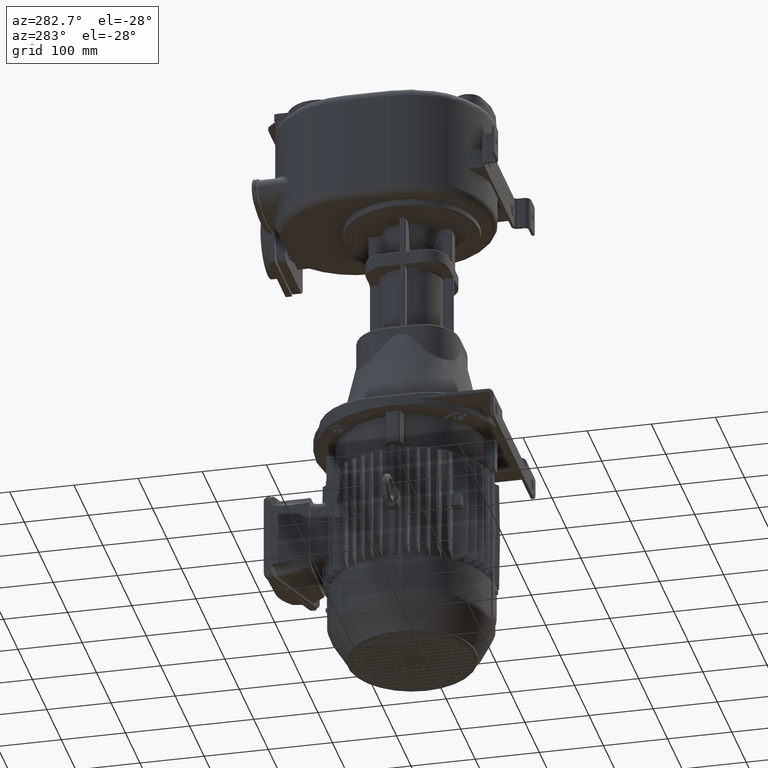
[diagram: clean part render]
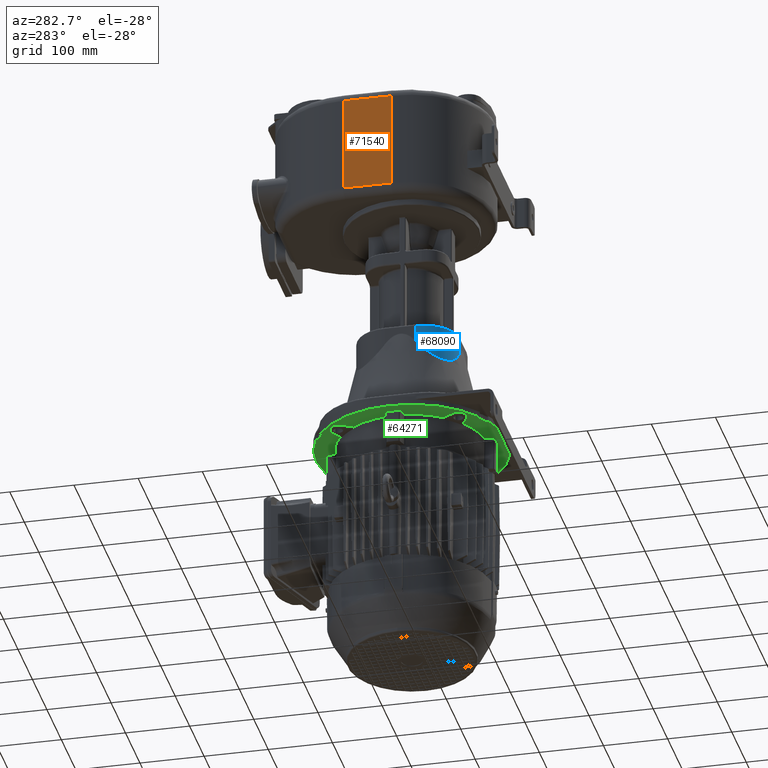
[diagram: same view with three faces highlighted in distinct colors, each labeled with its STEP entity id]
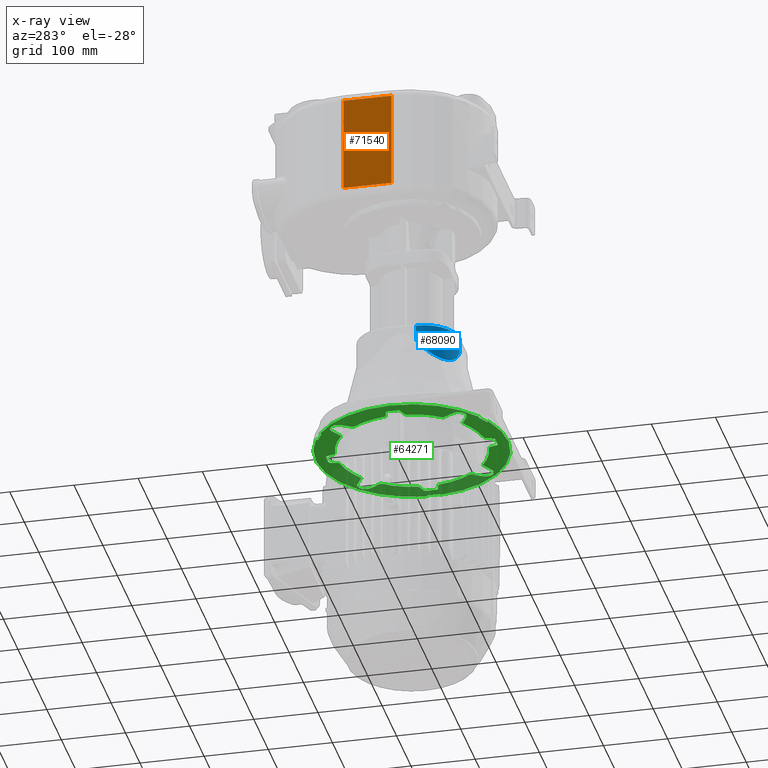
[diagram: x-ray of the same camera — body ghosted, the three highlighted faces saturated]
A machine part, auxiliary view with three faces highlighted in distinct colors.
The next image is the same camera in x-ray (body ghosted, the three faces saturated) — at least one of them is partly hidden behind the body in this view.
Their STEP definitions:

[orange] entity #71540 — the highlighted planar face has unit normal (-1, 0, 0).
#16171=DIRECTION('',(0.E0,3.031649005910E-14,1.E0));
#16172=VECTOR('',#16171,1.5E2);
#16173=CARTESIAN_POINT('',(-1.33E2,2.078750672767E2,-5.5E1));
#16174=LINE('',#16173,#16172);
#18139=DIRECTION('',(0.E0,1.E0,0.E0));
#18140=VECTOR('',#18139,7.487506727663E1);
#18141=CARTESIAN_POINT('',(-1.33E2,1.33E2,-5.5E1));
#18142=LINE('',#18141,#18140);
#18143=DIRECTION('',(0.E0,-1.E0,0.E0));
#18144=VECTOR('',#18143,7.487506727662E1);
#18145=CARTESIAN_POINT('',(-1.33E2,2.078750672767E2,9.5E1));
#18146=LINE('',#18145,#18144);
#18147=DIRECTION('',(0.E0,1.191817015448E-13,1.E0));
#18148=VECTOR('',#18147,1.5E2);
#18149=CARTESIAN_POINT('',(-1.33E2,1.33E2,-5.5E1));
#18150=LINE('',#18149,#18148);
#35637=CARTESIAN_POINT('',(-1.33E2,1.33E2,9.5E1));
#35638=VERTEX_POINT('',#35637);
#35643=CARTESIAN_POINT('',(-1.33E2,2.078750672767E2,9.5E1));
#35644=VERTEX_POINT('',#35643);
#35675=CARTESIAN_POINT('',(-1.33E2,1.33E2,-5.5E1));
#35676=VERTEX_POINT('',#35675);
#35679=CARTESIAN_POINT('',(-1.33E2,2.078750672767E2,-5.5E1));
#35680=VERTEX_POINT('',#35679);
#71528=CARTESIAN_POINT('',(-1.33E2,1.33E2,-7.E1));
#71529=DIRECTION('',(-1.E0,0.E0,0.E0));
#71530=DIRECTION('',(0.E0,1.E0,0.E0));
#71531=AXIS2_PLACEMENT_3D('',#71528,#71529,#71530);
#71532=PLANE('',#71531);
#71533=ORIENTED_EDGE('',*,*,#69312,.T.);
#71534=ORIENTED_EDGE('',*,*,#69345,.T.);
#71536=ORIENTED_EDGE('',*,*,#71535,.T.);
#71537=ORIENTED_EDGE('',*,*,#71511,.F.);
#71538=EDGE_LOOP('',(#71533,#71534,#71536,#71537));
#71539=FACE_OUTER_BOUND('',#71538,.F.);
#71540=ADVANCED_FACE('',(#71539),#71532,.T.);
#69312=EDGE_CURVE('',#35676,#35680,#18142,.T.);
#69345=EDGE_CURVE('',#35680,#35644,#16174,.T.);
#71511=EDGE_CURVE('',#35676,#35638,#18150,.T.);
#71535=EDGE_CURVE('',#35644,#35638,#18146,.T.);

[blue] entity #68090 — the highlighted cylindrical surface (partial cylindrical patch) has radius 56 mm, axis along (0, 0, 1).
#14515=CARTESIAN_POINT('',(-2.4E1,5.100000000022E1,-3.019786503790E2));
#14517=DIRECTION('',(0.E0,8.644929750280E-12,-1.E0));
#14518=VECTOR('',#14517,2.547865037899E1);
#14519=CARTESIAN_POINT('',(-2.4E1,5.1E1,-2.765E2));
#14520=LINE('',#14519,#14518);
#14540=CARTESIAN_POINT('',(-7.999999999978E1,1.07E2,-3.019786503790E2));
#14740=DIRECTION('',(8.447205462623E-12,0.E0,-1.E0));
#14741=VECTOR('',#14740,2.547865037900E1);
#14742=CARTESIAN_POINT('',(-8.E1,1.07E2,-2.765E2));
#14743=LINE('',#14742,#14741);
#14744=CARTESIAN_POINT('',(-2.4E1,1.07E2,-2.765E2));
#14745=DIRECTION('',(0.E0,0.E0,1.E0));
#14746=DIRECTION('',(-1.E0,0.E0,0.E0));
#14747=AXIS2_PLACEMENT_3D('',#14744,#14745,#14746);
#14749=CARTESIAN_POINT('',(-2.4E1,5.100000000022E1,-3.019786503790E2));
#14750=CARTESIAN_POINT('',(-2.643154655872E1,5.100000000870E1,
-3.050609790173E2));
#14751=CARTESIAN_POINT('',(-3.122876873437E1,5.131821845424E1,
-3.106632131171E2));
#14752=CARTESIAN_POINT('',(-3.805050641615E1,5.264889122497E1,
-3.173973264040E2));
#14753=CARTESIAN_POINT('',(-4.439745381722E1,5.471131779686E1,
-3.225726210665E2));
#14754=CARTESIAN_POINT('',(-5.015148383580E1,5.735610326234E1,
-3.262865884477E2));
#14755=CARTESIAN_POINT('',(-5.519854718414E1,6.037989127452E1,
-3.286853462530E2));
#14756=CARTESIAN_POINT('',(-5.965699922068E1,6.370449898679E1,
-3.300236311751E2));
#14757=CARTESIAN_POINT('',(-6.365883618E1,6.734114765858E1,-3.304537459220E2));
#14758=CARTESIAN_POINT('',(-6.729549174639E1,7.134298910860E1,
-3.300236340106E2));
#14759=CARTESIAN_POINT('',(-7.062010227431E1,7.580144312786E1,
-3.286853500798E2));
#14760=CARTESIAN_POINT('',(-7.364389211428E1,8.084850714764E1,
-3.262865936768E2));
#14761=CARTESIAN_POINT('',(-7.628867996519E1,8.660254016803E1,
-3.225726256052E2));
#14762=CARTESIAN_POINT('',(-7.835110768997E1,9.294948896515E1,
-3.173973307133E2));
#14763=CARTESIAN_POINT('',(-7.968178150694E1,9.977123007168E1,
-3.106632145645E2));
#14764=CARTESIAN_POINT('',(-8.000000000526E1,1.045684531064E2,
-3.050609794650E2));
#14765=CARTESIAN_POINT('',(-7.999999999978E1,1.07E2,-3.019786503790E2));
#36701=CARTESIAN_POINT('',(-2.4E1,5.1E1,-2.765E2));
#36702=VERTEX_POINT('',#36701);
#36705=CARTESIAN_POINT('',(-8.E1,1.07E2,-2.765E2));
#36706=VERTEX_POINT('',#36705);
#36755=VERTEX_POINT('',#14515);
#36757=VERTEX_POINT('',#14540);
#68079=CARTESIAN_POINT('',(-2.4E1,1.07E2,-2.745E2));
#68080=DIRECTION('',(0.E0,0.E0,1.E0));
#68081=DIRECTION('',(1.E0,0.E0,0.E0));
#68082=AXIS2_PLACEMENT_3D('',#68079,#68080,#68081);
#68083=CYLINDRICAL_SURFACE('',#68082,5.6E1);
#68084=ORIENTED_EDGE('',*,*,#66357,.F.);
#68085=ORIENTED_EDGE('',*,*,#68069,.T.);
#68086=ORIENTED_EDGE('',*,*,#65577,.T.);
#68087=ORIENTED_EDGE('',*,*,#66074,.T.);
#68088=EDGE_LOOP('',(#68084,#68085,#68086,#68087));
#68089=FACE_OUTER_BOUND('',#68088,.F.);
#68090=ADVANCED_FACE('',(#68089),#68083,.T.);
#14748=CIRCLE('',#14747,5.6E1);
#14766=B_SPLINE_CURVE_WITH_KNOTS('',3,(#14749,#14750,#14751,#14752,#14753,
#14754,#14755,#14756,#14757,#14758,#14759,#14760,#14761,#14762,#14763,#14764,
#14765),.UNSPECIFIED.,.F.,.F.,(4,1,1,1,1,1,1,1,1,1,1,1,1,1,4),(0.E0,
7.142857142857E-2,1.428571428571E-1,2.142857142857E-1,2.857142857143E-1,
3.571428571429E-1,4.285714285714E-1,5.E-1,5.714285714286E-1,6.428571428571E-1,
7.142857142857E-1,7.857142857143E-1,8.571428571429E-1,9.285714285714E-1,1.E0),
.UNSPECIFIED.);
#65577=EDGE_CURVE('',#36702,#36755,#14520,.T.);
#66074=EDGE_CURVE('',#36755,#36757,#14766,.T.);
#66357=EDGE_CURVE('',#36706,#36757,#14743,.T.);
#68069=EDGE_CURVE('',#36706,#36702,#14748,.T.);

[green] entity #64271 — the highlighted planar face has unit normal (0, 0, -1).
#12014=CARTESIAN_POINT('',(-6.985028300531E1,3.663941355335E1,-4.475E2));
#12024=CARTESIAN_POINT('',(-1.677839667950E1,1.480403531208E1,
-4.475000038922E2));
#12026=CARTESIAN_POINT('',(1.677839668540E1,1.480403527035E1,
-4.475000039765E2));
#13366=CARTESIAN_POINT('',(-2.068343506299E-12,1.31E2,-4.475E2));
#13367=DIRECTION('',(0.E0,0.E0,-1.E0));
#13368=DIRECTION('',(-4.411526246511E-1,8.974320931210E-1,0.E0));
#13369=AXIS2_PLACEMENT_3D('',#13366,#13367,#13368);
#13371=DIRECTION('',(-4.999999999962E-1,8.660254037867E-1,0.E0));
#13372=VECTOR('',#13371,2.666295470979E0);
#13373=CARTESIAN_POINT('',(-6.483974596215E1,2.633057343562E2,-4.475E2));
#13374=LINE('',#13373,#13372);
#13375=DIRECTION('',(8.660254037844E-1,5.E-1,0.E0));
#13376=VECTOR('',#13375,2.E1);
#13377=CARTESIAN_POINT('',(-8.216025403784E1,2.533057343562E2,-4.475E2));
#13378=LINE('',#13377,#13376);
#13379=DIRECTION('',(4.999999999962E-1,-8.660254037867E-1,0.E0));
#13380=VECTOR('',#13379,2.666295470980E0);
#13381=CARTESIAN_POINT('',(-8.349340177332E1,2.556148139681E2,-4.475E2));
#13382=LINE('',#13381,#13380);
#13383=DIRECTION('',(-5.000000000042E-1,-8.660254037820E-1,0.E0));
#13384=VECTOR('',#13383,2.666295470937E0);
#13385=CARTESIAN_POINT('',(-8.216025403784E1,8.694265643614E0,-4.475E2));
#13386=LINE('',#13385,#13384);
#13387=DIRECTION('',(-8.660254037844E-1,5.E-1,0.E0));
#13388=VECTOR('',#13387,2.E1);
#13389=CARTESIAN_POINT('',(-6.483974596215E1,-1.305734356386E0,-4.475E2));
#13390=LINE('',#13389,#13388);
#13391=DIRECTION('',(5.000000000042E-1,8.660254037820E-1,0.E0));
#13392=VECTOR('',#13391,2.666295470937E0);
#13393=CARTESIAN_POINT('',(-6.617289369763E1,-3.614813968205E0,-4.475E2));
#13394=LINE('',#13393,#13392);
#13395=CARTESIAN_POINT('',(-2.068343506299E-12,1.31E2,-4.475E2));
#13396=DIRECTION('',(0.E0,0.E0,-1.E0));
#13397=DIRECTION('',(9.977753031397E-1,-6.666666666716E-2,0.E0));
#13398=AXIS2_PLACEMENT_3D('',#13395,#13396,#13397);
#13400=CARTESIAN_POINT('',(0.E0,1.309999999999E2,-4.475E2));
#13401=DIRECTION('',(0.E0,0.E0,1.E0));
#13402=DIRECTION('',(5.949720586321E-1,8.037463837848E-1,0.E0));
#13403=AXIS2_PLACEMENT_3D('',#13400,#13401,#13402);
#13405=DIRECTION('',(-8.660254037844E-1,-5.E-1,8.954910478748E-14));
#13406=VECTOR('',#13405,2.031275921588E1);
#13407=CARTESIAN_POINT('',(8.744164850722E1,2.355169660545E2,-4.475E2));
#13408=LINE('',#13407,#13406);
#13409=CARTESIAN_POINT('',(9.369164850722E1,2.246916485071E2,-4.475E2));
#13410=DIRECTION('',(0.E0,0.E0,1.E0));
#13411=DIRECTION('',(8.660254037844E-1,-5.E-1,0.E0));
#13412=AXIS2_PLACEMENT_3D('',#13409,#13410,#13411);
#13414=DIRECTION('',(5.E-1,8.660254037844E-1,-8.954910478748E-14));
#13415=VECTOR('',#13414,2.031275921588E1);
#13416=CARTESIAN_POINT('',(9.436058644658E1,2.008502830052E2,-4.475E2));
#13417=LINE('',#13416,#13415);
#13418=CARTESIAN_POINT('',(0.E0,1.309999999999E2,-4.475E2));
#13419=DIRECTION('',(0.E0,0.E0,1.E0));
#13420=DIRECTION('',(9.897349420994E-1,1.429151650017E-1,0.E0));
#13421=AXIS2_PLACEMENT_3D('',#13418,#13419,#13420);
#13423=DIRECTION('',(-9.659224545839E-1,2.588316281497E-1,-2.176542213968E-7));
#13424=VECTOR('',#13423,1.168559143071E1);
#13425=CARTESIAN_POINT('',(1.296757316355E2,1.422854835056E2,-4.475E2));
#13426=LINE('',#13425,#13424);
#13427=DIRECTION('',(0.E0,1.E0,0.E0));
#13428=VECTOR('',#13427,1.677629474465E1);
#13429=CARTESIAN_POINT('',(1.318989358438E2,1.226118526276E2,-4.475E2));
#13430=LINE('',#13429,#13428);
#13431=DIRECTION('',(9.659224560049E-1,2.588316228464E-1,2.178457231904E-7));
#13432=VECTOR('',#13431,1.168559143069E1);
#13433=CARTESIAN_POINT('',(1.183883564609E2,1.166899159004E2,
-4.475000025457E2));
#13434=LINE('',#13433,#13432);
#13435=CARTESIAN_POINT('',(0.E0,1.309999999999E2,-4.475E2));
#13436=DIRECTION('',(0.E0,0.E0,1.E0));
#13437=DIRECTION('',(8.037463837847E-1,-5.949720586321E-1,0.E0));
#13438=AXIS2_PLACEMENT_3D('',#13435,#13436,#13437);
#13440=DIRECTION('',(-5.E-1,8.660254037844E-1,8.954910478748E-14));
#13441=VECTOR('',#13440,2.031275921588E1);
#13442=CARTESIAN_POINT('',(1.045169660545E2,4.355835149271E1,-4.475E2));
#13443=LINE('',#13442,#13441);
#13444=DIRECTION('',(8.660254037844E-1,-5.E-1,-8.954910478748E-14));
#13445=VECTOR('',#13444,2.031275921588E1);
#13446=CARTESIAN_POINT('',(6.985028300531E1,3.663941355335E1,-4.475E2));
#13447=LINE('',#13446,#13445);
#13448=CARTESIAN_POINT('',(0.E0,1.309999999999E2,-4.475E2));
#13449=DIRECTION('',(0.E0,0.E0,1.E0));
#13450=DIRECTION('',(1.429151650018E-1,-9.897349420994E-1,0.E0));
#13451=AXIS2_PLACEMENT_3D('',#13448,#13449,#13450);
#13453=DIRECTION('',(2.588316262081E-1,9.659224551041E-1,-2.177243320286E-7));
#13454=VECTOR('',#13453,1.168559143070E1);
#13455=CARTESIAN_POINT('',(1.128548350565E1,1.324268364469E0,-4.475E2));
#13456=LINE('',#13455,#13454);
#13457=DIRECTION('',(1.E0,0.E0,0.E0));
#13458=VECTOR('',#13457,1.677629474465E1);
#13459=CARTESIAN_POINT('',(-8.388147372326E0,-8.989358438756E-1,-4.475E2));
#13460=LINE('',#13459,#13458);
#13461=DIRECTION('',(2.588316291898E-1,-9.659224543052E-1,2.176166779391E-7));
#13462=VECTOR('',#13461,1.168559143072E1);
#13463=CARTESIAN_POINT('',(-1.431008417371E1,1.261164351923E1,
-4.475000025430E2));
#13464=LINE('',#13463,#13462);
#13465=CARTESIAN_POINT('',(0.E0,1.309999999999E2,-4.475E2));
#13466=DIRECTION('',(0.E0,0.E0,1.E0));
#13467=DIRECTION('',(-5.949720586321E-1,-8.037463837847E-1,0.E0));
#13468=AXIS2_PLACEMENT_3D('',#13465,#13466,#13467);
#13470=DIRECTION('',(8.660254037844E-1,5.E-1,8.954910478747E-14));
#13471=VECTOR('',#13470,2.031275921588E1);
#13472=CARTESIAN_POINT('',(-8.744164850722E1,2.648303394540E1,-4.475E2));
#13473=LINE('',#13472,#13471);
#13474=DIRECTION('',(-5.E-1,-8.660254037844E-1,-8.954910478748E-14));
#13475=VECTOR('',#13474,2.031275921588E1);
#13476=CARTESIAN_POINT('',(-9.436058644658E1,6.114971699462E1,-4.475E2));
#13477=LINE('',#13476,#13475);
#13478=CARTESIAN_POINT('',(0.E0,1.309999999999E2,-4.475E2));
#13479=DIRECTION('',(0.E0,0.E0,1.E0));
#13480=DIRECTION('',(-9.897349420994E-1,-1.429151650018E-1,0.E0));
#13481=AXIS2_PLACEMENT_3D('',#13478,#13479,#13480);
#13483=DIRECTION('',(9.659224551041E-1,-2.588316262082E-1,-2.177243271642E-7));
#13484=VECTOR('',#13483,1.168559143070E1);
#13485=CARTESIAN_POINT('',(-1.296757316355E2,1.197145164943E2,-4.475E2));
#13486=LINE('',#13485,#13484);
#13487=DIRECTION('',(0.E0,-1.E0,0.E0));
#13488=VECTOR('',#13487,1.677629474465E1);
#13489=CARTESIAN_POINT('',(-1.318989358438E2,1.393881473723E2,-4.475E2));
#13490=LINE('',#13489,#13488);
#13491=DIRECTION('',(-9.659224535630E-1,-2.588316319593E-1,2.175166658258E-7));
#13492=VECTOR('',#13491,1.168559143073E1);
#13493=CARTESIAN_POINT('',(-1.183883564894E2,1.453100842060E2,
-4.475000025418E2));
#13494=LINE('',#13493,#13492);
#13495=CARTESIAN_POINT('',(0.E0,1.309999999999E2,-4.475E2));
#13496=DIRECTION('',(0.E0,0.E0,1.E0));
#13497=DIRECTION('',(-8.037463837847E-1,5.949720586321E-1,0.E0));
#13498=AXIS2_PLACEMENT_3D('',#13495,#13496,#13497);
#13500=DIRECTION('',(5.E-1,-8.660254037844E-1,8.954910478748E-14));
#13501=VECTOR('',#13500,2.031275921588E1);
#13502=CARTESIAN_POINT('',(-1.045169660545E2,2.184416485071E2,-4.475E2));
#13503=LINE('',#13502,#13501);
#13504=CARTESIAN_POINT('',(-9.369164850722E1,2.246916485071E2,-4.475E2));
#13505=DIRECTION('',(0.E0,0.E0,1.E0));
#13506=DIRECTION('',(0.E0,1.E0,0.E0));
#13507=AXIS2_PLACEMENT_3D('',#13504,#13505,#13506);
#13509=CARTESIAN_POINT('',(-9.369164850722E1,2.246916485071E2,-4.475E2));
#13510=DIRECTION('',(0.E0,0.E0,1.E0));
#13511=DIRECTION('',(5.E-1,8.660254037845E-1,0.E0));
#13512=AXIS2_PLACEMENT_3D('',#13509,#13510,#13511);
#13514=DIRECTION('',(-8.660254037844E-1,5.E-1,-8.954910478748E-14));
#13515=VECTOR('',#13514,2.031275921588E1);
#13516=CARTESIAN_POINT('',(-6.985028300531E1,2.253605864465E2,-4.475E2));
#13517=LINE('',#13516,#13515);
#13518=CARTESIAN_POINT('',(0.E0,1.309999999999E2,-4.475E2));
#13519=DIRECTION('',(0.E0,0.E0,1.E0));
#13520=DIRECTION('',(-1.429151650017E-1,9.897349420994E-1,0.E0));
#13521=AXIS2_PLACEMENT_3D('',#13518,#13519,#13520);
#13523=DIRECTION('',(-2.588316309142E-1,-9.659224538431E-1,-2.175543941308E-7));
#13524=VECTOR('',#13523,1.168559143072E1);
#13525=CARTESIAN_POINT('',(-1.128548350565E1,2.606757316354E2,-4.475E2));
#13526=LINE('',#13525,#13524);
#13527=DIRECTION('',(-1.E0,0.E0,0.E0));
#13528=VECTOR('',#13527,1.677629474465E1);
#13529=CARTESIAN_POINT('',(8.388147372326E0,2.628989358437E2,-4.475E2));
#13530=LINE('',#13529,#13528);
#13531=DIRECTION('',(-2.588316243166E-1,9.659224556110E-1,2.177926428314E-7));
#13532=VECTOR('',#13531,1.168559143070E1);
#13533=CARTESIAN_POINT('',(1.431008411676E1,2.493883564654E2,
-4.475000025450E2));
#13534=LINE('',#13533,#13532);
#13535=DIRECTION('',(1.E0,9.316512109312E-12,0.E0));
#13536=VECTOR('',#13535,2.666295470957E0);
#13537=CARTESIAN_POINT('',(1.47E2,1.409999999999E2,-4.475E2));
#13538=LINE('',#13537,#13536);
#13560=DIRECTION('',(-1.E0,-9.305852484473E-12,0.E0));
#13561=VECTOR('',#13560,2.666295470957E0);
#13562=CARTESIAN_POINT('',(1.496662954710E2,1.21E2,-4.475E2));
#13563=LINE('',#13562,#13561);
#13564=DIRECTION('',(0.E0,1.E0,0.E0));
#13565=VECTOR('',#13564,2.E1);
#13566=CARTESIAN_POINT('',(1.47E2,1.209999999999E2,-4.475E2));
#13567=LINE('',#13566,#13565);
#13592=CARTESIAN_POINT('',(-2.068343506299E-12,1.31E2,-4.475E2));
#13593=DIRECTION('',(0.E0,0.E0,-1.E0));
#13594=DIRECTION('',(-5.566226784886E-1,-8.307654264545E-1,0.E0));
#13595=AXIS2_PLACEMENT_3D('',#13592,#13593,#13594);
#23665=CARTESIAN_POINT('',(1.161959646731E2,1.477783966772E2,
-4.475000039795E2));
#23666=CARTESIAN_POINT('',(1.162387447735E2,1.474821313892E2,
-4.475000039795E2));
#23667=CARTESIAN_POINT('',(1.164056863860E2,1.469293674599E2,
-4.474999980615E2));
#23668=CARTESIAN_POINT('',(1.168892248477E2,1.461866716082E2,
-4.475000008154E2));
#23669=CARTESIAN_POINT('',(1.175697225523E2,1.456187322292E2,
-4.474999986770E2));
#23670=CARTESIAN_POINT('',(1.180990892467E2,1.453875926279E2,
-4.475000025434E2));
#23671=CARTESIAN_POINT('',(1.183883564774E2,1.453100841615E2,
-4.475000025434E2));
#23711=CARTESIAN_POINT('',(1.296757316355E2,1.422854835056E2,-4.475E2));
#23712=CARTESIAN_POINT('',(1.304167997049E2,1.420869149148E2,-4.475E2));
#23713=CARTESIAN_POINT('',(1.314003619669E2,1.413072085421E2,-4.475E2));
#23714=CARTESIAN_POINT('',(1.318989358438E2,1.401553574926E2,-4.475E2));
#23715=CARTESIAN_POINT('',(1.318989358438E2,1.393881473723E2,-4.475E2));
#23731=CARTESIAN_POINT('',(1.318989358438E2,1.226118526276E2,-4.475E2));
#23732=CARTESIAN_POINT('',(1.318989358438E2,1.218446425072E2,-4.475E2));
#23733=CARTESIAN_POINT('',(1.314003619669E2,1.206927914578E2,-4.475E2));
#23734=CARTESIAN_POINT('',(1.304167997049E2,1.199130850850E2,-4.475E2));
#23735=CARTESIAN_POINT('',(1.296757316355E2,1.197145164943E2,-4.475E2));
#23759=CARTESIAN_POINT('',(1.183883564609E2,1.166899159004E2,
-4.475000025457E2));
#23760=CARTESIAN_POINT('',(1.180990893731E2,1.166124074723E2,
-4.475000025457E2));
#23761=CARTESIAN_POINT('',(1.175697228705E2,1.163812679791E2,
-4.474999986791E2));
#23762=CARTESIAN_POINT('',(1.168892247092E2,1.158133282309E2,
-4.475000008047E2));
#23763=CARTESIAN_POINT('',(1.164056865448E2,1.150706328880E2,
-4.474999981020E2));
#23764=CARTESIAN_POINT('',(1.162387448855E2,1.145178687459E2,
-4.475000038922E2));
#23765=CARTESIAN_POINT('',(1.161959647635E2,1.142216033095E2,
-4.475000038922E2));
#23790=CARTESIAN_POINT('',(9.369164850722E1,3.730835149271E1,-4.475E2));
#23791=DIRECTION('',(0.E0,0.E0,1.E0));
#23792=DIRECTION('',(-5.000000000001E-1,-8.660254037844E-1,0.E0));
#23793=AXIS2_PLACEMENT_3D('',#23790,#23791,#23792);
#23826=CARTESIAN_POINT('',(1.677839668540E1,1.480403527035E1,
-4.475000039765E2));
#23827=CARTESIAN_POINT('',(1.648213139614E1,1.476125516977E1,
-4.475000039765E2));
#23828=CARTESIAN_POINT('',(1.592936745249E1,1.459431363796E1,
-4.474999980629E2));
#23829=CARTESIAN_POINT('',(1.518667160456E1,1.411077514405E1,
-4.475000008151E2));
#23830=CARTESIAN_POINT('',(1.461873223799E1,1.343027744423E1,
-4.474999986767E2));
#23831=CARTESIAN_POINT('',(1.438759260501E1,1.290091075849E1,
-4.475000025442E2));
#23832=CARTESIAN_POINT('',(1.431008413886E1,1.261164352856E1,
-4.475000025442E2));
#23867=CARTESIAN_POINT('',(1.128548350565E1,1.324268364469E0,-4.475E2));
#23868=CARTESIAN_POINT('',(1.108691491490E1,5.832002950208E-1,-4.475E2));
#23869=CARTESIAN_POINT('',(1.030720854214E1,-4.003619669406E-1,-4.475E2));
#23870=CARTESIAN_POINT('',(9.155357492688E0,-8.989358438753E-1,-4.475E2));
#23871=CARTESIAN_POINT('',(8.388147372326E0,-8.989358438756E-1,-4.475E2));
#23887=CARTESIAN_POINT('',(-8.388147372326E0,-8.989358438756E-1,-4.475E2));
#23888=CARTESIAN_POINT('',(-9.155357492688E0,-8.989358438756E-1,-4.475E2));
#23889=CARTESIAN_POINT('',(-1.030720854214E1,-4.003619669406E-1,-4.475E2));
#23890=CARTESIAN_POINT('',(-1.108691491490E1,5.832002950215E-1,-4.475E2));
#23891=CARTESIAN_POINT('',(-1.128548350565E1,1.324268364470E0,-4.475E2));
#23915=CARTESIAN_POINT('',(-1.431008417371E1,1.261164351923E1,
-4.475000025430E2));
#23916=CARTESIAN_POINT('',(-1.438759260230E1,1.290091060899E1,
-4.475000025430E2));
#23917=CARTESIAN_POINT('',(-1.461873199058E1,1.343027714241E1,
-4.474999986803E2));
#23918=CARTESIAN_POINT('',(-1.518667178063E1,1.411077530096E1,
-4.475000008044E2));
#23919=CARTESIAN_POINT('',(-1.592936712119E1,1.459431342374E1,
-4.474999981021E2));
#23920=CARTESIAN_POINT('',(-1.648213124515E1,1.476125519039E1,
-4.475000038922E2));
#23921=CARTESIAN_POINT('',(-1.677839667950E1,1.480403531208E1,
-4.475000038922E2));
#23946=CARTESIAN_POINT('',(-9.369164850722E1,3.730835149271E1,-4.475E2));
#23947=DIRECTION('',(0.E0,0.E0,1.E0));
#23948=DIRECTION('',(-8.660254037844E-1,5.000000000001E-1,0.E0));
#23949=AXIS2_PLACEMENT_3D('',#23946,#23947,#23948);
#23982=CARTESIAN_POINT('',(-1.161959647296E2,1.142216033145E2,
-4.475000039765E2));
#23983=CARTESIAN_POINT('',(-1.162387448301E2,1.145178686038E2,
-4.475000039765E2));
#23984=CARTESIAN_POINT('',(-1.164056863620E2,1.150706325474E2,
-4.474999980629E2));
#23985=CARTESIAN_POINT('',(-1.168892248559E2,1.158133283954E2,
-4.475000008151E2));
#23986=CARTESIAN_POINT('',(-1.175697225557E2,1.163812677619E2,
-4.474999986767E2));
#23987=CARTESIAN_POINT('',(-1.180990892414E2,1.166124073949E2,
-4.475000025442E2));
#23988=CARTESIAN_POINT('',(-1.183883564714E2,1.166899158611E2,
-4.475000025442E2));
#24006=CARTESIAN_POINT('',(-1.296757316355E2,1.197145164943E2,-4.475E2));
#24007=CARTESIAN_POINT('',(-1.304167997049E2,1.199130850850E2,-4.475E2));
#24008=CARTESIAN_POINT('',(-1.314003619669E2,1.206927914578E2,-4.475E2));
#24009=CARTESIAN_POINT('',(-1.318989358438E2,1.218446425072E2,-4.475E2));
#24010=CARTESIAN_POINT('',(-1.318989358438E2,1.226118526276E2,-4.475E2));
#24018=CARTESIAN_POINT('',(-1.318989358438E2,1.393881473723E2,-4.475E2));
#24019=CARTESIAN_POINT('',(-1.318989358438E2,1.401553574926E2,-4.475E2));
#24020=CARTESIAN_POINT('',(-1.314003619669E2,1.413072085421E2,-4.475E2));
#24021=CARTESIAN_POINT('',(-1.304167997049E2,1.420869149148E2,-4.475E2));
#24022=CARTESIAN_POINT('',(-1.296757316355E2,1.422854835056E2,-4.475E2));
#24046=CARTESIAN_POINT('',(-1.183883564894E2,1.453100842060E2,
-4.475000025418E2));
#24047=CARTESIAN_POINT('',(-1.180990893992E2,1.453875926347E2,
-4.475000025418E2));
#24048=CARTESIAN_POINT('',(-1.175697228507E2,1.456187319763E2,
-4.474999986809E2));
#24049=CARTESIAN_POINT('',(-1.168892247044E2,1.461866717854E2,
-4.475000008043E2));
#24050=CARTESIAN_POINT('',(-1.164056865613E2,1.469293671160E2,
-4.474999981021E2));
#24051=CARTESIAN_POINT('',(-1.162387448427E2,1.474821312494E2,
-4.475000038922E2));
#24052=CARTESIAN_POINT('',(-1.161959647210E2,1.477783966842E2,
-4.475000038922E2));
#24113=CARTESIAN_POINT('',(-1.677839668202E1,2.471959647061E2,
-4.475000039778E2));
#24114=CARTESIAN_POINT('',(-1.648213139362E1,2.472387448066E2,
-4.475000039778E2));
#24115=CARTESIAN_POINT('',(-1.592936745482E1,2.474056863710E2,
-4.474999980624E2));
#24116=CARTESIAN_POINT('',(-1.518667161305E1,2.478892248531E2,
-4.475000008150E2));
#24117=CARTESIAN_POINT('',(-1.461873221507E1,2.485697225454E2,
-4.474999986776E2));
#24118=CARTESIAN_POINT('',(-1.438759266035E1,2.490990892548E2,
-4.475000025423E2));
#24119=CARTESIAN_POINT('',(-1.431008419386E1,2.493883564860E2,
-4.475000025423E2));
#24154=CARTESIAN_POINT('',(-1.128548350565E1,2.606757316354E2,-4.475E2));
#24155=CARTESIAN_POINT('',(-1.108691491490E1,2.614167997048E2,-4.475E2));
#24156=CARTESIAN_POINT('',(-1.030720854214E1,2.624003619668E2,-4.475E2));
#24157=CARTESIAN_POINT('',(-9.155357492689E0,2.628989358437E2,-4.475E2));
#24158=CARTESIAN_POINT('',(-8.388147372327E0,2.628989358437E2,-4.475E2));
#24174=CARTESIAN_POINT('',(8.388147372325E0,2.628989358437E2,-4.475E2));
#24175=CARTESIAN_POINT('',(9.155357492687E0,2.628989358437E2,-4.475E2));
#24176=CARTESIAN_POINT('',(1.030720854214E1,2.624003619668E2,-4.475E2));
#24177=CARTESIAN_POINT('',(1.108691491490E1,2.614167997048E2,-4.475E2));
#24178=CARTESIAN_POINT('',(1.128548350565E1,2.606757316354E2,-4.475E2));
#24202=CARTESIAN_POINT('',(1.431008411676E1,2.493883564654E2,
-4.475000025450E2));
#24203=CARTESIAN_POINT('',(1.438759254487E1,2.490990893774E2,
-4.475000025450E2));
#24204=CARTESIAN_POINT('',(1.461873201329E1,2.485697228668E2,
-4.474999986794E2));
#24205=CARTESIAN_POINT('',(1.518667177158E1,2.478892247118E2,
-4.475000008047E2));
#24206=CARTESIAN_POINT('',(1.592936710945E1,2.474056865377E2,
-4.474999981020E2));
#24207=CARTESIAN_POINT('',(1.648213125610E1,2.472387449010E2,
-4.475000038922E2));
#24208=CARTESIAN_POINT('',(1.677839669268E1,2.471959647790E2,
-4.475000038922E2));
#43102=CARTESIAN_POINT('',(1.045169660545E2,4.355835149271E1,-4.475E2));
#43104=VERTEX_POINT('',#43102);
#43105=CARTESIAN_POINT('',(8.744164850722E1,2.648303394540E1,-4.475E2));
#43107=VERTEX_POINT('',#43105);
#43109=CARTESIAN_POINT('',(-1.045169660545E2,4.355835149271E1,-4.475E2));
#43111=VERTEX_POINT('',#43109);
#43117=VERTEX_POINT('',#12026);
#43119=CARTESIAN_POINT('',(6.985028300531E1,3.663941355335E1,-4.475E2));
#43120=VERTEX_POINT('',#43119);
#43121=CARTESIAN_POINT('',(-1.161958192874E2,1.142216243161E2,-4.475E2));
#43122=CARTESIAN_POINT('',(-9.436058644658E1,6.114971699462E1,-4.475E2));
#43123=VERTEX_POINT('',#43121);
#43124=VERTEX_POINT('',#43122);
#43127=VERTEX_POINT('',#12014);
#43130=CARTESIAN_POINT('',(-1.128548350565E1,2.606757316354E2,-4.475E2));
#43132=VERTEX_POINT('',#43130);
#43135=CARTESIAN_POINT('',(-1.296757316355E2,1.422854835056E2,-4.475E2));
#43137=VERTEX_POINT('',#43135);
#43143=CARTESIAN_POINT('',(1.128548350565E1,2.606757316354E2,-4.475E2));
#43145=VERTEX_POINT('',#43143);
#43149=CARTESIAN_POINT('',(8.388147372326E0,2.628989358437E2,-4.475E2));
#43150=VERTEX_POINT('',#43149);
#43151=CARTESIAN_POINT('',(-1.431008419386E1,2.493883564860E2,
-4.475000025423E2));
#43152=VERTEX_POINT('',#43151);
#43153=CARTESIAN_POINT('',(-8.388147372326E0,2.628989358437E2,-4.475E2));
#43154=VERTEX_POINT('',#43153);
#43155=CARTESIAN_POINT('',(1.431008411676E1,2.493883564654E2,
-4.475000025450E2));
#43157=VERTEX_POINT('',#43155);
#43164=CARTESIAN_POINT('',(1.431008413886E1,1.261164352856E1,
-4.475000025442E2));
#43166=VERTEX_POINT('',#43164);
#43167=CARTESIAN_POINT('',(8.388147372326E0,-8.989358438756E-1,-4.475E2));
#43168=VERTEX_POINT('',#43167);
#43169=CARTESIAN_POINT('',(-1.431008417371E1,1.261164351923E1,
-4.475000025430E2));
#43171=VERTEX_POINT('',#43169);
#43175=CARTESIAN_POINT('',(8.744164850722E1,2.355169660545E2,-4.475E2));
#43176=VERTEX_POINT('',#43175);
#43178=CARTESIAN_POINT('',(-8.388147372326E0,-8.989358438756E-1,-4.475E2));
#43179=VERTEX_POINT('',#43178);
#43180=CARTESIAN_POINT('',(1.128548350565E1,1.324268364469E0,-4.475E2));
#43181=VERTEX_POINT('',#43180);
#43184=CARTESIAN_POINT('',(-1.318989358438E2,1.226118526276E2,-4.475E2));
#43186=VERTEX_POINT('',#43184);
#43193=CARTESIAN_POINT('',(-1.183883564714E2,1.166899158611E2,
-4.475000025442E2));
#43194=VERTEX_POINT('',#43193);
#43196=CARTESIAN_POINT('',(-1.183883564894E2,1.453100842060E2,
-4.475000025418E2));
#43197=VERTEX_POINT('',#43196);
#43198=CARTESIAN_POINT('',(1.183883564609E2,1.166899159004E2,
-4.475000025457E2));
#43200=VERTEX_POINT('',#43198);
#43203=CARTESIAN_POINT('',(1.296757316355E2,1.197145164943E2,-4.475E2));
#43205=VERTEX_POINT('',#43203);
#43207=CARTESIAN_POINT('',(1.318989358438E2,1.393881473723E2,-4.475E2));
#43209=VERTEX_POINT('',#43207);
#43213=CARTESIAN_POINT('',(1.183883564774E2,1.453100841615E2,
-4.475000025434E2));
#43215=VERTEX_POINT('',#43213);
#43216=CARTESIAN_POINT('',(-1.318989358438E2,1.393881473723E2,-4.475E2));
#43217=VERTEX_POINT('',#43216);
#43218=CARTESIAN_POINT('',(1.318989358438E2,1.226118526276E2,-4.475E2));
#43220=VERTEX_POINT('',#43218);
#43222=CARTESIAN_POINT('',(-1.296757316355E2,1.197145164943E2,-4.475E2));
#43223=VERTEX_POINT('',#43222);
#43225=CARTESIAN_POINT('',(-1.045169660545E2,2.184416485071E2,-4.475E2));
#43227=VERTEX_POINT('',#43225);
#43230=CARTESIAN_POINT('',(1.045169660545E2,2.184416485071E2,-4.475E2));
#43232=VERTEX_POINT('',#43230);
#43234=CARTESIAN_POINT('',(-1.128548350565E1,1.324268364469E0,-4.475E2));
#43235=VERTEX_POINT('',#43234);
#43242=CARTESIAN_POINT('',(-8.744164850722E1,2.355169660545E2,-4.475E2));
#43243=VERTEX_POINT('',#43242);
#43246=CARTESIAN_POINT('',(-8.744164850722E1,2.648303394540E1,-4.475E2));
#43247=VERTEX_POINT('',#43246);
#43252=CARTESIAN_POINT('',(9.436058644658E1,6.114971699462E1,-4.475E2));
#43253=CARTESIAN_POINT('',(1.161958192874E2,1.142216243161E2,-4.475E2));
#43254=VERTEX_POINT('',#43252);
#43255=VERTEX_POINT('',#43253);
#43257=VERTEX_POINT('',#12024);
#43262=CARTESIAN_POINT('',(-6.617289369763E1,-3.614813968205E0,-4.475E2));
#43263=CARTESIAN_POINT('',(-6.483974596215E1,-1.305734356386E0,-4.475E2));
#43264=VERTEX_POINT('',#43262);
#43265=VERTEX_POINT('',#43263);
#43266=CARTESIAN_POINT('',(1.496662954710E2,1.209999999999E2,-4.475E2));
#43267=VERTEX_POINT('',#43266);
#43268=CARTESIAN_POINT('',(-8.216025403784E1,8.694265643614E0,-4.475E2));
#43269=VERTEX_POINT('',#43268);
#43270=CARTESIAN_POINT('',(-8.349340177332E1,6.385186031794E0,-4.475E2));
#43271=VERTEX_POINT('',#43270);
#43272=CARTESIAN_POINT('',(1.47E2,1.209999999999E2,-4.475E2));
#43273=CARTESIAN_POINT('',(1.47E2,1.409999999999E2,-4.475E2));
#43274=VERTEX_POINT('',#43272);
#43275=VERTEX_POINT('',#43273);
#43276=CARTESIAN_POINT('',(1.496662954710E2,1.41E2,-4.475E2));
#43277=VERTEX_POINT('',#43276);
#43278=CARTESIAN_POINT('',(-6.617289369766E1,2.656148139681E2,-4.475E2));
#43279=VERTEX_POINT('',#43278);
#43280=CARTESIAN_POINT('',(6.985028300531E1,2.253605864465E2,-4.475E2));
#43281=CARTESIAN_POINT('',(1.677837568386E1,2.471958192874E2,-4.475E2));
#43282=VERTEX_POINT('',#43280);
#43283=VERTEX_POINT('',#43281);
#43284=CARTESIAN_POINT('',(-8.216025403784E1,2.533057343562E2,-4.475E2));
#43285=CARTESIAN_POINT('',(-6.483974596215E1,2.633057343562E2,-4.475E2));
#43286=VERTEX_POINT('',#43284);
#43287=VERTEX_POINT('',#43285);
#43288=CARTESIAN_POINT('',(-8.349340177332E1,2.556148139681E2,-4.475E2));
#43289=VERTEX_POINT('',#43288);
#43290=CARTESIAN_POINT('',(-1.677837568385E1,2.471958192874E2,-4.475E2));
#43291=CARTESIAN_POINT('',(-6.985028300531E1,2.253605864465E2,-4.475E2));
#43292=VERTEX_POINT('',#43290);
#43293=VERTEX_POINT('',#43291);
#43294=CARTESIAN_POINT('',(-9.436058644658E1,2.008502830052E2,-4.475E2));
#43295=VERTEX_POINT('',#43294);
#43296=CARTESIAN_POINT('',(-9.369164850722E1,2.371916485071E2,-4.475E2));
#43297=VERTEX_POINT('',#43296);
#43298=CARTESIAN_POINT('',(-1.161958192874E2,1.477783756838E2,-4.475E2));
#43299=VERTEX_POINT('',#43298);
#43300=VERTEX_POINT('',#23711);
#43301=CARTESIAN_POINT('',(1.161958192874E2,1.477783756838E2,-4.475E2));
#43302=CARTESIAN_POINT('',(9.436058644658E1,2.008502830052E2,-4.475E2));
#43303=VERTEX_POINT('',#43301);
#43304=VERTEX_POINT('',#43302);
#64149=CARTESIAN_POINT('',(1.174009468040E2,1.309999999999E2,-4.475E2));
#64150=DIRECTION('',(0.E0,0.E0,-1.E0));
#64151=DIRECTION('',(1.E0,0.E0,0.E0));
#64152=AXIS2_PLACEMENT_3D('',#64149,#64150,#64151);
#64153=PLANE('',#64152);
#64155=ORIENTED_EDGE('',*,*,#64154,.T.);
#64157=ORIENTED_EDGE('',*,*,#64156,.F.);
#64159=ORIENTED_EDGE('',*,*,#64158,.F.);
#64161=ORIENTED_EDGE('',*,*,#64160,.F.);
#64163=ORIENTED_EDGE('',*,*,#64162,.F.);
#64165=ORIENTED_EDGE('',*,*,#64164,.F.);
#64167=ORIENTED_EDGE('',*,*,#64166,.F.);
#64169=ORIENTED_EDGE('',*,*,#64168,.F.);
#64171=ORIENTED_EDGE('',*,*,#64170,.F.);
#64173=ORIENTED_EDGE('',*,*,#64172,.F.);
#64175=ORIENTED_EDGE('',*,*,#64174,.T.);
#64177=ORIENTED_EDGE('',*,*,#64176,.T.);
#64178=EDGE_LOOP('',(#64155,#64157,#64159,#64161,#64163,#64165,#64167,#64169,
#64171,#64173,#64175,#64177));
#64179=FACE_OUTER_BOUND('',#64178,.F.);
#64180=ORIENTED_EDGE('',*,*,#59407,.F.);
#64182=ORIENTED_EDGE('',*,*,#64181,.F.);
#64184=ORIENTED_EDGE('',*,*,#64183,.F.);
#64186=ORIENTED_EDGE('',*,*,#64185,.F.);
#64187=ORIENTED_EDGE('',*,*,#59399,.F.);
#64189=ORIENTED_EDGE('',*,*,#64188,.T.);
#64191=ORIENTED_EDGE('',*,*,#64190,.F.);
#64193=ORIENTED_EDGE('',*,*,#64192,.T.);
#64195=ORIENTED_EDGE('',*,*,#64194,.F.);
#64197=ORIENTED_EDGE('',*,*,#64196,.T.);
#64199=ORIENTED_EDGE('',*,*,#64198,.F.);
#64201=ORIENTED_EDGE('',*,*,#64200,.T.);
#64202=ORIENTED_EDGE('',*,*,#59479,.F.);
#64204=ORIENTED_EDGE('',*,*,#64203,.F.);
#64206=ORIENTED_EDGE('',*,*,#64205,.F.);
#64208=ORIENTED_EDGE('',*,*,#64207,.F.);
#64209=ORIENTED_EDGE('',*,*,#59471,.F.);
#64211=ORIENTED_EDGE('',*,*,#64210,.T.);
#64213=ORIENTED_EDGE('',*,*,#64212,.F.);
#64215=ORIENTED_EDGE('',*,*,#64214,.T.);
#64217=ORIENTED_EDGE('',*,*,#64216,.F.);
#64219=ORIENTED_EDGE('',*,*,#64218,.T.);
#64221=ORIENTED_EDGE('',*,*,#64220,.F.);
#64223=ORIENTED_EDGE('',*,*,#64222,.T.);
#64224=ORIENTED_EDGE('',*,*,#59463,.F.);
#64226=ORIENTED_EDGE('',*,*,#64225,.F.);
#64228=ORIENTED_EDGE('',*,*,#64227,.F.);
#64230=ORIENTED_EDGE('',*,*,#64229,.F.);
#64231=ORIENTED_EDGE('',*,*,#59455,.F.);
#64233=ORIENTED_EDGE('',*,*,#64232,.T.);
#64235=ORIENTED_EDGE('',*,*,#64234,.F.);
#64237=ORIENTED_EDGE('',*,*,#64236,.T.);
#64238=ORIENTED_EDGE('',*,*,#64139,.F.);
#64240=ORIENTED_EDGE('',*,*,#64239,.T.);
#64242=ORIENTED_EDGE('',*,*,#64241,.F.);
#64244=ORIENTED_EDGE('',*,*,#64243,.T.);
#64245=ORIENTED_EDGE('',*,*,#59423,.F.);
#64247=ORIENTED_EDGE('',*,*,#64246,.F.);
#64249=ORIENTED_EDGE('',*,*,#64248,.F.);
#64251=ORIENTED_EDGE('',*,*,#64250,.F.);
#64253=ORIENTED_EDGE('',*,*,#64252,.F.);
#64254=ORIENTED_EDGE('',*,*,#59415,.F.);
#64256=ORIENTED_EDGE('',*,*,#64255,.T.);
#64258=ORIENTED_EDGE('',*,*,#64257,.F.);
#64260=ORIENTED_EDGE('',*,*,#64259,.T.);
#64262=ORIENTED_EDGE('',*,*,#64261,.F.);
#64264=ORIENTED_EDGE('',*,*,#64263,.T.);
#64266=ORIENTED_EDGE('',*,*,#64265,.F.);
#64268=ORIENTED_EDGE('',*,*,#64267,.T.);
#64269=EDGE_LOOP('',(#64180,#64182,#64184,#64186,#64187,#64189,#64191,#64193,
#64195,#64197,#64199,#64201,#64202,#64204,#64206,#64208,#64209,#64211,#64213,
#64215,#64217,#64219,#64221,#64223,#64224,#64226,#64228,#64230,#64231,#64233,
#64235,#64237,#64238,#64240,#64242,#64244,#64245,#64247,#64249,#64251,#64253,
#64254,#64256,#64258,#64260,#64262,#64264,#64266,#64268));
#64270=FACE_BOUND('',#64269,.F.);
#64271=ADVANCED_FACE('',(#64179,#64270),#64153,.T.);
#13370=CIRCLE('',#13369,1.5E2);
#13399=CIRCLE('',#13398,1.5E2);
#13404=CIRCLE('',#13403,1.174009468040E2);
#13413=CIRCLE('',#13412,1.25E1);
#13422=CIRCLE('',#13421,1.174009468040E2);
#13439=CIRCLE('',#13438,1.174009468040E2);
#13452=CIRCLE('',#13451,1.174009468040E2);
#13469=CIRCLE('',#13468,1.174009468040E2);
#13482=CIRCLE('',#13481,1.174009468040E2);
#13499=CIRCLE('',#13498,1.174009468040E2);
#13508=CIRCLE('',#13507,1.25E1);
#13513=CIRCLE('',#13512,1.25E1);
#13522=CIRCLE('',#13521,1.174009468040E2);
#13596=CIRCLE('',#13595,1.5E2);
#23672=B_SPLINE_CURVE_WITH_KNOTS('',3,(#23665,#23666,#23667,#23668,#23669,
#23670,#23671),.UNSPECIFIED.,.F.,.F.,(4,1,1,1,4),(0.E0,2.5E-1,5.E-1,7.5E-1,
1.E0),.UNSPECIFIED.);
#23716=B_SPLINE_CURVE_WITH_KNOTS('',3,(#23711,#23712,#23713,#23714,#23715),
.UNSPECIFIED.,.F.,.F.,(4,1,4),(0.E0,5.E-1,1.E0),.UNSPECIFIED.);
#23736=B_SPLINE_CURVE_WITH_KNOTS('',3,(#23731,#23732,#23733,#23734,#23735),
.UNSPECIFIED.,.F.,.F.,(4,1,4),(0.E0,5.E-1,1.E0),.UNSPECIFIED.);
#23766=B_SPLINE_CURVE_WITH_KNOTS('',3,(#23759,#23760,#23761,#23762,#23763,
#23764,#23765),.UNSPECIFIED.,.F.,.F.,(4,1,1,1,4),(0.E0,2.5E-1,5.E-1,7.5E-1,
1.E0),.UNSPECIFIED.);
#23794=CIRCLE('',#23793,1.25E1);
#23833=B_SPLINE_CURVE_WITH_KNOTS('',3,(#23826,#23827,#23828,#23829,#23830,
#23831,#23832),.UNSPECIFIED.,.F.,.F.,(4,1,1,1,4),(0.E0,2.5E-1,5.E-1,7.5E-1,
1.E0),.UNSPECIFIED.);
#23872=B_SPLINE_CURVE_WITH_KNOTS('',3,(#23867,#23868,#23869,#23870,#23871),
.UNSPECIFIED.,.F.,.F.,(4,1,4),(0.E0,5.E-1,1.E0),.UNSPECIFIED.);
#23892=B_SPLINE_CURVE_WITH_KNOTS('',3,(#23887,#23888,#23889,#23890,#23891),
.UNSPECIFIED.,.F.,.F.,(4,1,4),(0.E0,5.E-1,1.E0),.UNSPECIFIED.);
#23922=B_SPLINE_CURVE_WITH_KNOTS('',3,(#23915,#23916,#23917,#23918,#23919,
#23920,#23921),.UNSPECIFIED.,.F.,.F.,(4,1,1,1,4),(0.E0,2.5E-1,5.E-1,7.5E-1,
1.E0),.UNSPECIFIED.);
#23950=CIRCLE('',#23949,1.25E1);
#23989=B_SPLINE_CURVE_WITH_KNOTS('',3,(#23982,#23983,#23984,#23985,#23986,
#23987,#23988),.UNSPECIFIED.,.F.,.F.,(4,1,1,1,4),(0.E0,2.5E-1,5.E-1,7.5E-1,
1.E0),.UNSPECIFIED.);
#24011=B_SPLINE_CURVE_WITH_KNOTS('',3,(#24006,#24007,#24008,#24009,#24010),
.UNSPECIFIED.,.F.,.F.,(4,1,4),(0.E0,5.E-1,1.E0),.UNSPECIFIED.);
#24023=B_SPLINE_CURVE_WITH_KNOTS('',3,(#24018,#24019,#24020,#24021,#24022),
.UNSPECIFIED.,.F.,.F.,(4,1,4),(0.E0,5.E-1,1.E0),.UNSPECIFIED.);
#24053=B_SPLINE_CURVE_WITH_KNOTS('',3,(#24046,#24047,#24048,#24049,#24050,
#24051,#24052),.UNSPECIFIED.,.F.,.F.,(4,1,1,1,4),(0.E0,2.5E-1,5.E-1,7.5E-1,
1.E0),.UNSPECIFIED.);
#24120=B_SPLINE_CURVE_WITH_KNOTS('',3,(#24113,#24114,#24115,#24116,#24117,
#24118,#24119),.UNSPECIFIED.,.F.,.F.,(4,1,1,1,4),(0.E0,2.5E-1,5.E-1,7.5E-1,
1.E0),.UNSPECIFIED.);
#24159=B_SPLINE_CURVE_WITH_KNOTS('',3,(#24154,#24155,#24156,#24157,#24158),
.UNSPECIFIED.,.F.,.F.,(4,1,4),(0.E0,5.E-1,1.E0),.UNSPECIFIED.);
#24179=B_SPLINE_CURVE_WITH_KNOTS('',3,(#24174,#24175,#24176,#24177,#24178),
.UNSPECIFIED.,.F.,.F.,(4,1,4),(0.E0,5.E-1,1.E0),.UNSPECIFIED.);
#24209=B_SPLINE_CURVE_WITH_KNOTS('',3,(#24202,#24203,#24204,#24205,#24206,
#24207,#24208),.UNSPECIFIED.,.F.,.F.,(4,1,1,1,4),(0.E0,2.5E-1,5.E-1,7.5E-1,
1.E0),.UNSPECIFIED.);
#59399=EDGE_CURVE('',#43303,#43304,#13422,.T.);
#59407=EDGE_CURVE('',#43282,#43283,#13404,.T.);
#59415=EDGE_CURVE('',#43292,#43293,#13522,.T.);
#59423=EDGE_CURVE('',#43295,#43299,#13499,.T.);
#59455=EDGE_CURVE('',#43123,#43124,#13482,.T.);
#59463=EDGE_CURVE('',#43127,#43257,#13469,.T.);
#59471=EDGE_CURVE('',#43117,#43120,#13452,.T.);
#59479=EDGE_CURVE('',#43254,#43255,#13439,.T.);
#64139=EDGE_CURVE('',#43217,#43186,#13490,.T.);
#64154=EDGE_CURVE('',#43275,#43277,#13538,.T.);
#64156=EDGE_CURVE('',#43279,#43277,#13370,.T.);
#64158=EDGE_CURVE('',#43287,#43279,#13374,.T.);
#64160=EDGE_CURVE('',#43286,#43287,#13378,.T.);
#64162=EDGE_CURVE('',#43289,#43286,#13382,.T.);
#64164=EDGE_CURVE('',#43271,#43289,#13596,.T.);
#64166=EDGE_CURVE('',#43269,#43271,#13386,.T.);
#64168=EDGE_CURVE('',#43265,#43269,#13390,.T.);
#64170=EDGE_CURVE('',#43264,#43265,#13394,.T.);
#64172=EDGE_CURVE('',#43267,#43264,#13399,.T.);
#64174=EDGE_CURVE('',#43267,#43274,#13563,.T.);
#64176=EDGE_CURVE('',#43274,#43275,#13567,.T.);
#64181=EDGE_CURVE('',#43176,#43282,#13408,.T.);
#64183=EDGE_CURVE('',#43232,#43176,#13413,.T.);
#64185=EDGE_CURVE('',#43304,#43232,#13417,.T.);
#64188=EDGE_CURVE('',#43303,#43215,#23672,.T.);
#64190=EDGE_CURVE('',#43300,#43215,#13426,.T.);
#64192=EDGE_CURVE('',#43300,#43209,#23716,.T.);
#64194=EDGE_CURVE('',#43220,#43209,#13430,.T.);
#64196=EDGE_CURVE('',#43220,#43205,#23736,.T.);
#64198=EDGE_CURVE('',#43200,#43205,#13434,.T.);
#64200=EDGE_CURVE('',#43200,#43255,#23766,.T.);
#64203=EDGE_CURVE('',#43104,#43254,#13443,.T.);
#64205=EDGE_CURVE('',#43107,#43104,#23794,.T.);
#64207=EDGE_CURVE('',#43120,#43107,#13447,.T.);
#64210=EDGE_CURVE('',#43117,#43166,#23833,.T.);
#64212=EDGE_CURVE('',#43181,#43166,#13456,.T.);
#64214=EDGE_CURVE('',#43181,#43168,#23872,.T.);
#64216=EDGE_CURVE('',#43179,#43168,#13460,.T.);
#64218=EDGE_CURVE('',#43179,#43235,#23892,.T.);
#64220=EDGE_CURVE('',#43171,#43235,#13464,.T.);
#64222=EDGE_CURVE('',#43171,#43257,#23922,.T.);
#64225=EDGE_CURVE('',#43247,#43127,#13473,.T.);
#64227=EDGE_CURVE('',#43111,#43247,#23950,.T.);
#64229=EDGE_CURVE('',#43124,#43111,#13477,.T.);
#64232=EDGE_CURVE('',#43123,#43194,#23989,.T.);
#64234=EDGE_CURVE('',#43223,#43194,#13486,.T.);
#64236=EDGE_CURVE('',#43223,#43186,#24011,.T.);
#64239=EDGE_CURVE('',#43217,#43137,#24023,.T.);
#64241=EDGE_CURVE('',#43197,#43137,#13494,.T.);
#64243=EDGE_CURVE('',#43197,#43299,#24053,.T.);
#64246=EDGE_CURVE('',#43227,#43295,#13503,.T.);
#64248=EDGE_CURVE('',#43297,#43227,#13508,.T.);
#64250=EDGE_CURVE('',#43243,#43297,#13513,.T.);
#64252=EDGE_CURVE('',#43293,#43243,#13517,.T.);
#64255=EDGE_CURVE('',#43292,#43152,#24120,.T.);
#64257=EDGE_CURVE('',#43132,#43152,#13526,.T.);
#64259=EDGE_CURVE('',#43132,#43154,#24159,.T.);
#64261=EDGE_CURVE('',#43150,#43154,#13530,.T.);
#64263=EDGE_CURVE('',#43150,#43145,#24179,.T.);
#64265=EDGE_CURVE('',#43157,#43145,#13534,.T.);
#64267=EDGE_CURVE('',#43157,#43283,#24209,.T.);